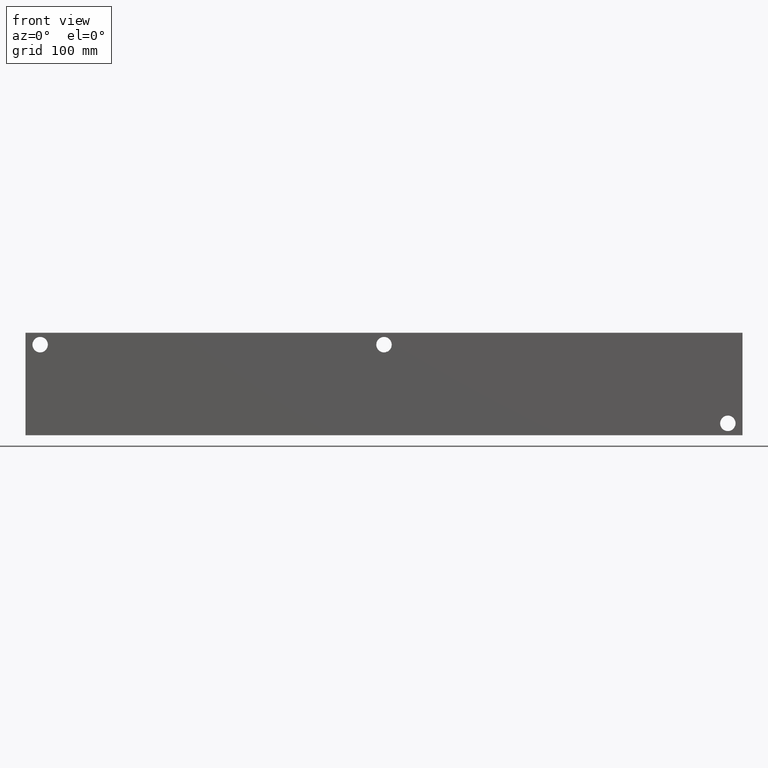
[diagram: clean part render]
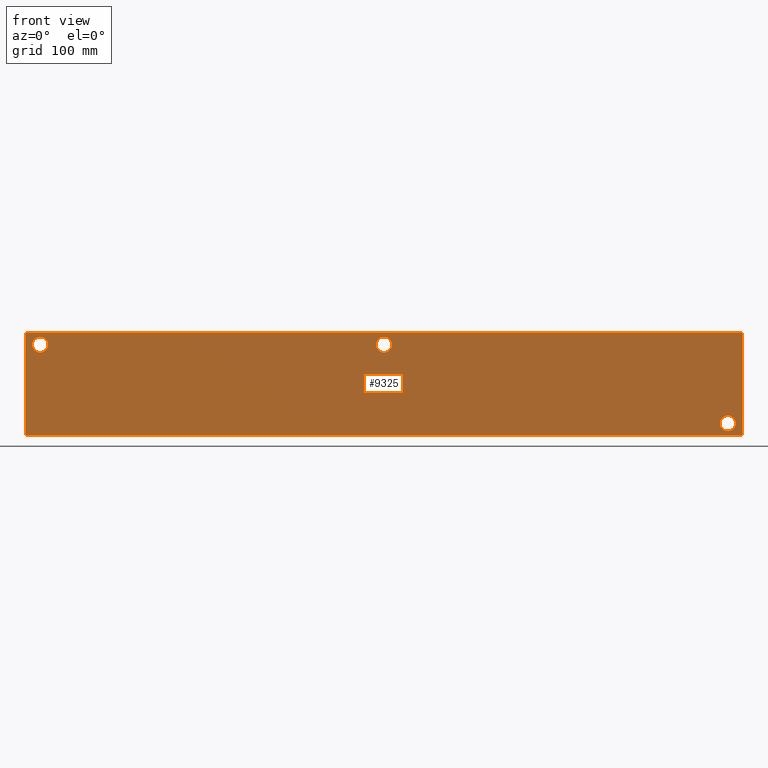
[diagram: same view with one face highlighted and labeled with its STEP entity id]
A machine part, front view. The second image highlights one B-rep face of the part: STEP entity #9325.
In plain terms, the highlighted planar face has unit normal (0, -1, 0).
Its self-contained STEP definition (entity closure, byte-faithful):
#293=CIRCLE('',#9745,6.7437);
#294=CIRCLE('',#9746,6.7437);
#296=CIRCLE('',#9754,6.7437);
#297=CIRCLE('',#9755,6.7437);
#299=CIRCLE('',#9763,6.7437);
#300=CIRCLE('',#9764,6.7437);
#503=FACE_BOUND('',#1911,.T.);
#504=FACE_BOUND('',#1912,.T.);
#505=FACE_BOUND('',#1913,.T.);
#1352=FACE_OUTER_BOUND('',#1910,.T.);
#1910=EDGE_LOOP('',(#8263,#8264,#8265,#8266));
#1911=EDGE_LOOP('',(#8267,#8268));
#1912=EDGE_LOOP('',(#8269,#8270));
#1913=EDGE_LOOP('',(#8271,#8272));
#2189=LINE('',#14377,#2975);
#2704=LINE('',#16407,#3490);
#2709=LINE('',#16416,#3495);
#2710=LINE('',#16418,#3496);
#2975=VECTOR('',#10395,10.);
#3490=VECTOR('',#12084,10.);
#3495=VECTOR('',#12093,10.);
#3496=VECTOR('',#12096,10.);
#3809=VERTEX_POINT('',#14375);
#3810=VERTEX_POINT('',#14376);
#4222=VERTEX_POINT('',#15933);
#4223=VERTEX_POINT('',#15934);
#4227=VERTEX_POINT('',#15949);
#4228=VERTEX_POINT('',#15950);
#4232=VERTEX_POINT('',#15965);
#4233=VERTEX_POINT('',#15966);
#4365=VERTEX_POINT('',#16405);
#4367=VERTEX_POINT('',#16414);
#4836=EDGE_CURVE('',#3809,#3810,#2189,.T.);
#5438=EDGE_CURVE('',#4222,#4223,#293,.T.);
#5439=EDGE_CURVE('',#4223,#4222,#294,.T.);
#5447=EDGE_CURVE('',#4227,#4228,#296,.T.);
#5448=EDGE_CURVE('',#4228,#4227,#297,.T.);
#5456=EDGE_CURVE('',#4232,#4233,#299,.T.);
#5457=EDGE_CURVE('',#4233,#4232,#300,.T.);
#5670=EDGE_CURVE('',#4365,#3809,#2704,.T.);
#5675=EDGE_CURVE('',#4367,#3810,#2709,.T.);
#5676=EDGE_CURVE('',#4365,#4367,#2710,.T.);
#8263=ORIENTED_EDGE('',*,*,#5676,.T.);
#8264=ORIENTED_EDGE('',*,*,#5675,.T.);
#8265=ORIENTED_EDGE('',*,*,#4836,.F.);
#8266=ORIENTED_EDGE('',*,*,#5670,.F.);
#8267=ORIENTED_EDGE('',*,*,#5438,.T.);
#8268=ORIENTED_EDGE('',*,*,#5439,.T.);
#8269=ORIENTED_EDGE('',*,*,#5447,.T.);
#8270=ORIENTED_EDGE('',*,*,#5448,.T.);
#8271=ORIENTED_EDGE('',*,*,#5456,.T.);
#8272=ORIENTED_EDGE('',*,*,#5457,.T.);
#8531=PLANE('',#9996);
#9325=ADVANCED_FACE('',(#1352,#503,#504,#505),#8531,.T.);
#9745=AXIS2_PLACEMENT_3D('',#15935,#11505,#11506);
#9746=AXIS2_PLACEMENT_3D('',#15936,#11507,#11508);
#9754=AXIS2_PLACEMENT_3D('',#15951,#11525,#11526);
#9755=AXIS2_PLACEMENT_3D('',#15952,#11527,#11528);
#9763=AXIS2_PLACEMENT_3D('',#15967,#11545,#11546);
#9764=AXIS2_PLACEMENT_3D('',#15968,#11547,#11548);
#9996=AXIS2_PLACEMENT_3D('',#16417,#12094,#12095);
#10395=DIRECTION('',(1.,0.,0.));
#11505=DIRECTION('center_axis',(0.,1.,0.));
#11506=DIRECTION('ref_axis',(1.,0.,0.));
#11507=DIRECTION('center_axis',(0.,1.,0.));
#11508=DIRECTION('ref_axis',(1.,0.,0.));
#11525=DIRECTION('center_axis',(0.,1.,0.));
#11526=DIRECTION('ref_axis',(1.,0.,0.));
#11527=DIRECTION('center_axis',(0.,1.,0.));
#11528=DIRECTION('ref_axis',(1.,0.,0.));
#11545=DIRECTION('center_axis',(0.,1.,0.));
#11546=DIRECTION('ref_axis',(1.,0.,0.));
#11547=DIRECTION('center_axis',(0.,1.,0.));
#11548=DIRECTION('ref_axis',(1.,0.,0.));
#12084=DIRECTION('',(0.,0.,1.));
#12093=DIRECTION('',(0.,0.,1.));
#12094=DIRECTION('center_axis',(0.,-1.,0.));
#12095=DIRECTION('ref_axis',(1.,0.,0.));
#12096=DIRECTION('',(1.,0.,0.));
#14375=CARTESIAN_POINT('',(0.,0.,88.9));
#14376=CARTESIAN_POINT('',(622.3,0.,88.9));
#14377=CARTESIAN_POINT('',(0.,0.,88.9));
#15933=CARTESIAN_POINT('',(317.8937,0.,78.5876));
#15934=CARTESIAN_POINT('',(304.4063,-7.105427357601E-14,78.5876));
#15935=CARTESIAN_POINT('Origin',(311.15,0.,78.5876));
#15936=CARTESIAN_POINT('Origin',(311.15,0.,78.5876));
#15949=CARTESIAN_POINT('',(19.4437,0.,78.5876));
#15950=CARTESIAN_POINT('',(5.9563,-7.105427357601E-14,78.5876));
#15951=CARTESIAN_POINT('Origin',(12.7,0.,78.5876));
#15952=CARTESIAN_POINT('Origin',(12.7,0.,78.5876));
#15965=CARTESIAN_POINT('',(616.3437,0.,10.3124));
#15966=CARTESIAN_POINT('',(602.8563,-7.105427357601E-14,10.3124));
#15967=CARTESIAN_POINT('Origin',(609.6,0.,10.3124));
#15968=CARTESIAN_POINT('Origin',(609.6,0.,10.3124));
#16405=CARTESIAN_POINT('',(0.,0.,0.));
#16407=CARTESIAN_POINT('',(0.,0.,0.));
#16414=CARTESIAN_POINT('',(622.3,0.,0.));
#16416=CARTESIAN_POINT('',(622.3,0.,0.));
#16417=CARTESIAN_POINT('Origin',(0.,0.,0.));
#16418=CARTESIAN_POINT('',(0.,0.,0.));